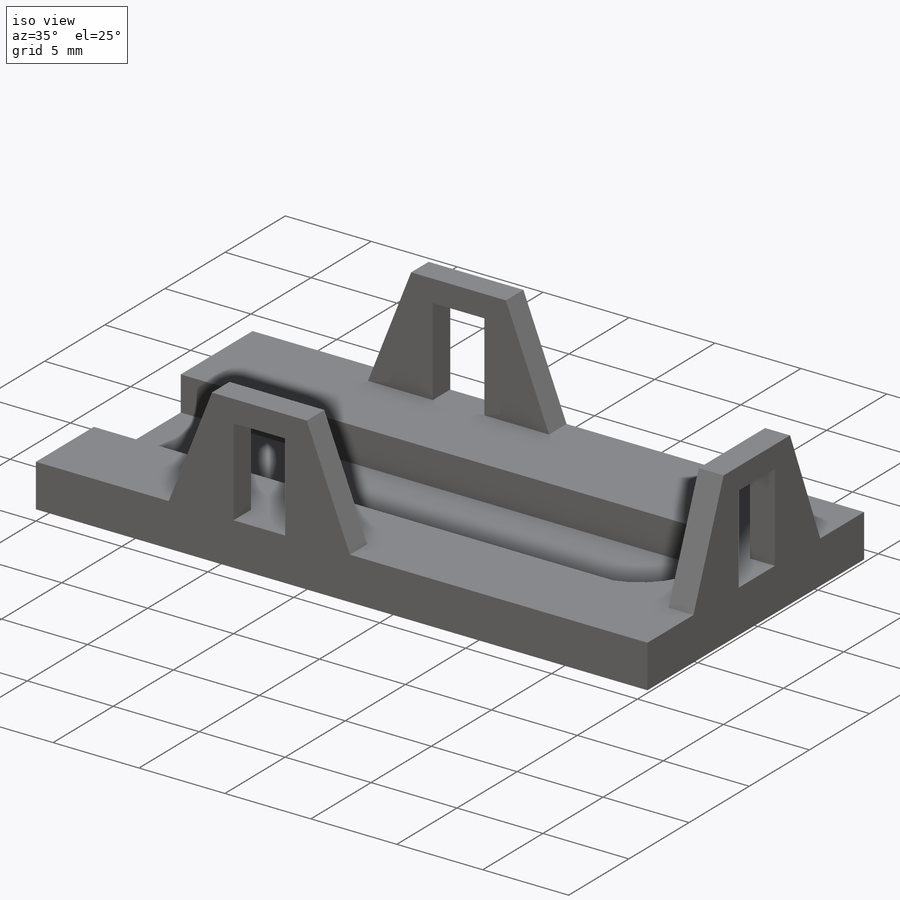
[diagram: iso view]
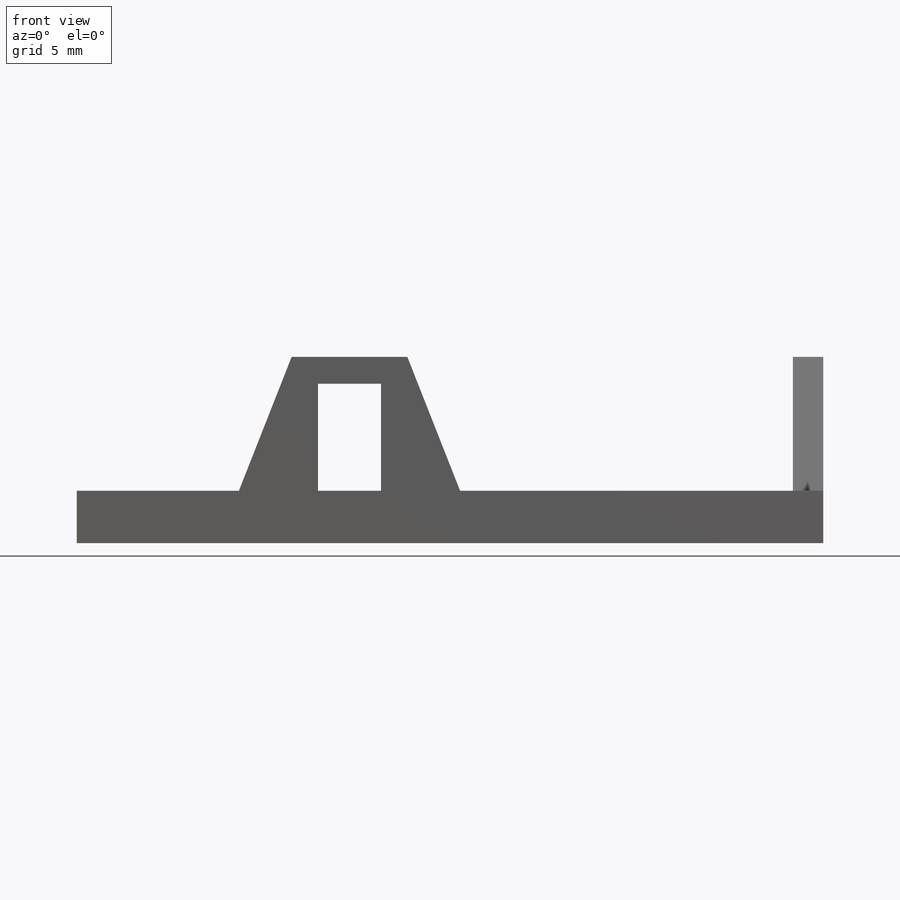
[diagram: front view]
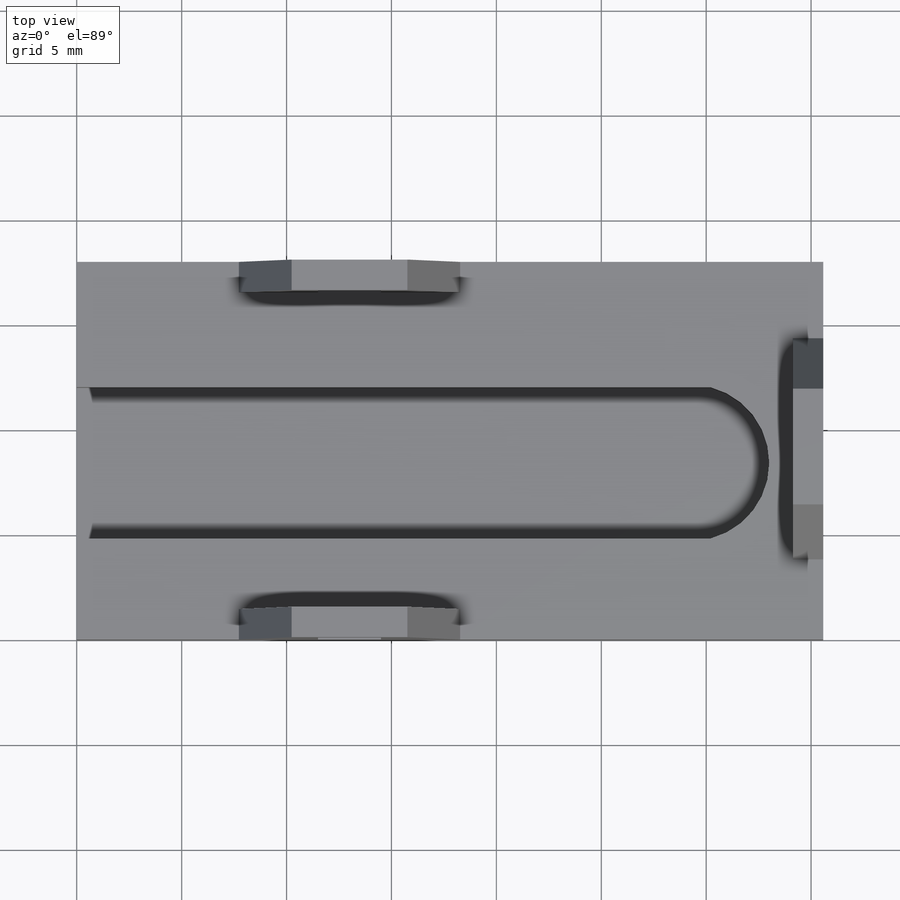
[diagram: top view]
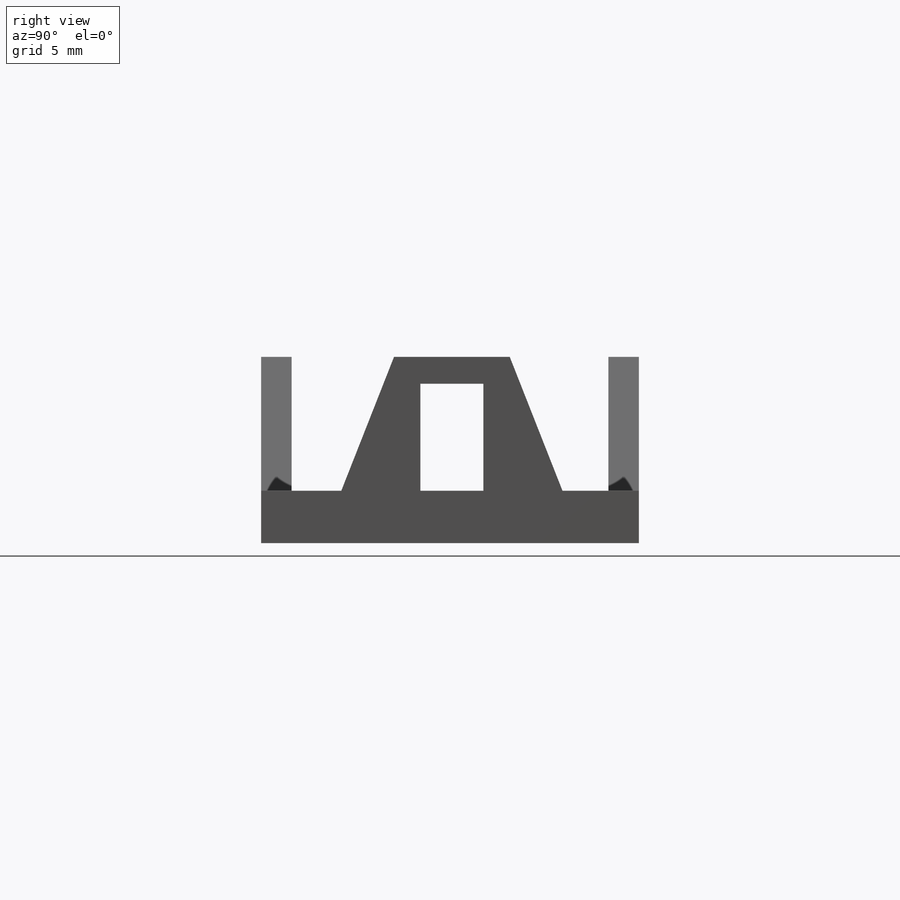
[diagram: right view]
SOLIDWORKS PART (.sldprt)
format: sldprt  version: not decoded by parser v0  size: 274,944 bytes
history: native  units: mm
features: sketch x7, extrude x3, cut_extrude x3, chamfer x2, material x1, plane x1, mirror x1 (+12 scaffold rows collapsed)
feature tree (30):
  scaffold x12  (default folders/planes/origin — collapsed)
  material  "Material <not specified>"
  sketch  "Sketch1"  dims[D1=35.58mm D2=18.0mm]
  extrude  "Boss-Extrude1"  Depth=2.5mm
  sketch  "Sketch2"  dims[c1.D3=~3.728382mm c1.D1=4.81mm c1.D2=7.22mm c2.D3=33.0mm]
  cut_extrude  "Cut-Extrude1"  Depth=2mm
  sketch  "Sketch3"  dims[D1=1.45mm D2=10.54mm D3=7.73mm]
  extrude  "Boss-Extrude2"  Depth=6.38mm
  chamfer  "Chamfer1"  Distance=6.38mm Angle=21.5deg
  sketch  "Sketch4"  dims[D1=3.0mm D2=5.1mm D3=3.77mm]
  cut_extrude  "Cut-Extrude2"  Depth=6.38mm
  plane  "Plane1"  Offset=9mm
  mirror  "Mirror1"
  sketch  "Sketch9"
  sketch  "Sketch14"  dims[D1=3.82mm D2=10.54mm D3=1.45mm]
  extrude  "Boss-Extrude5"  Depth=6.38mm
  chamfer  "Chamfer4"  Distance=6.38mm Angle=21.5deg
  sketch  "Sketch15"  dims[D1=5.1mm D2=3.0mm D3=3.77mm]
  cut_extrude  "Cut-Extrude4"  Depth=6.38mm
decode coverage: 14 of 16 modeling features carry decoded parameters
note: ~ marks probable driven/reference dimensions
note: suppression state not decoded; provenance and decode notes live in map.json
